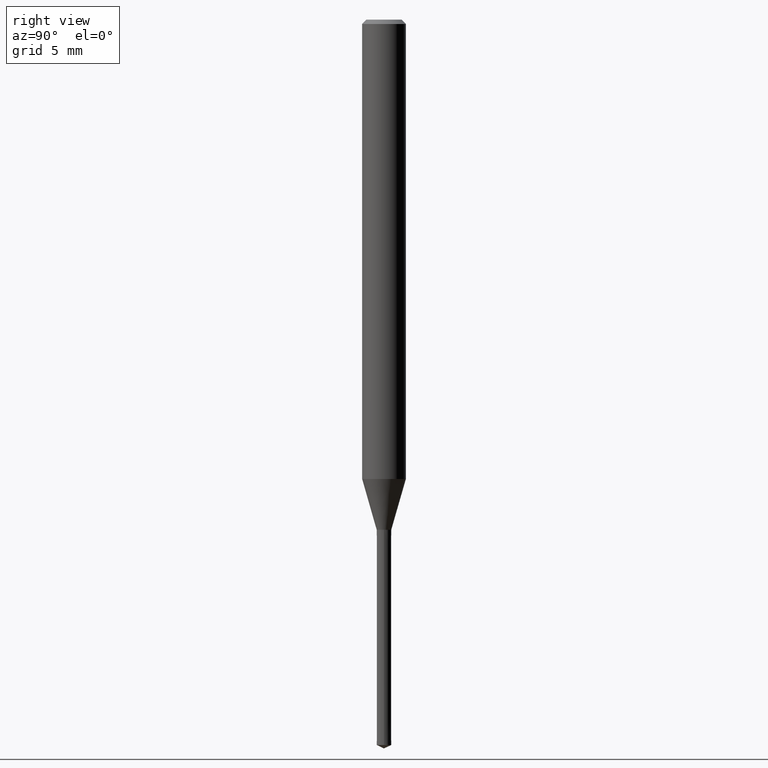
[diagram: clean part render]
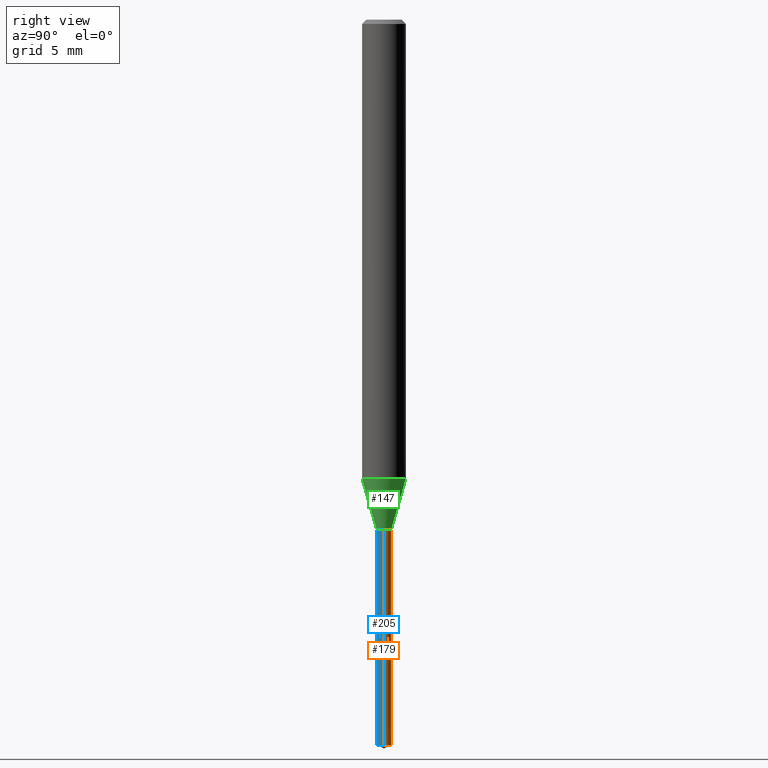
[diagram: same view with three faces highlighted in distinct colors, each labeled with its STEP entity id]
A machine part, right view with three faces highlighted in distinct colors.
Their STEP definitions:

[orange] entity #179 — the highlighted conical surface has half-angle 0.004 deg.
#105=VERTEX_POINT('',#242);
#109=VERTEX_POINT('',#246);
#155=VERTEX_POINT('',#300);
#157=EDGE_CURVE('',#105,#109,#302,.T.);
#159=EDGE_CURVE('',#155,#187,#304,.T.);
#177=EDGE_CURVE('',#187,#109,#323,.T.);
#179=ADVANCED_FACE('',(#325),#326,.T.);
#187=VERTEX_POINT('',#335);
#193=EDGE_CURVE('',#105,#155,#342,.T.);
#242=CARTESIAN_POINT('',(-0.501,0.0,-35.0));
#246=CARTESIAN_POINT('',(0.501,6.13527783265011E-017,-35.0));
#300=CARTESIAN_POINT('',(-0.5,0.0,-49.76684617));
#302=CIRCLE('',#463,0.501);
#304=CIRCLE('',#466,0.5);
#323=LINE('',#492,#493);
#325=FACE_OUTER_BOUND('',#495,.T.);
#326=CONICAL_SURFACE('',#496,0.5005,6.77192669957479E-005);
#335=CARTESIAN_POINT('',(0.5,6.12303176911189E-017,-49.76684617));
#342=LINE('',#515,#516);
#463=AXIS2_PLACEMENT_3D('',#638,#639,#640);
#466=AXIS2_PLACEMENT_3D('',#641,#642,#643);
#492=CARTESIAN_POINT('',(0.5005,6.129154800881E-017,-42.383423085));
#493=VECTOR('',#658,1.0);
#495=EDGE_LOOP('',(#660,#661,#662,#663));
#496=AXIS2_PLACEMENT_3D('',#664,#665,#666);
#515=CARTESIAN_POINT('',(-0.5005,-6.129154800881E-017,-42.383423085));
#516=VECTOR('',#687,1.0);
#638=CARTESIAN_POINT('',(0.0,0.0,-35.0));
#639=DIRECTION('',(0.0,0.0,-1.0));
#640=DIRECTION('',(-1.0,0.0,0.0));
#641=CARTESIAN_POINT('',(0.0,0.0,-49.76684617));
#642=DIRECTION('',(0.0,0.0,-1.0));
#643=DIRECTION('',(-1.0,0.0,0.0));
#658=DIRECTION('',(6.7719266943989E-005,8.29294445758026E-021,0.999999997707051));
#660=ORIENTED_EDGE('',*,*,#193,.F.);
#661=ORIENTED_EDGE('',*,*,#157,.T.);
#662=ORIENTED_EDGE('',*,*,#177,.F.);
#663=ORIENTED_EDGE('',*,*,#159,.F.);
#664=CARTESIAN_POINT('',(0.0,0.0,-42.383423085));
#665=DIRECTION('',(-0.0,-0.0,1.0));
#666=DIRECTION('',(-1.0,0.0,0.0));
#687=DIRECTION('',(6.7719266943989E-005,8.29294445758026E-021,-0.999999997707051));

[blue] entity #205 — the highlighted conical surface has half-angle 0.004 deg.
#105=VERTEX_POINT('',#242);
#109=VERTEX_POINT('',#246);
#133=EDGE_CURVE('',#109,#105,#275,.T.);
#155=VERTEX_POINT('',#300);
#177=EDGE_CURVE('',#187,#109,#323,.T.);
#187=VERTEX_POINT('',#335);
#193=EDGE_CURVE('',#105,#155,#342,.T.);
#199=EDGE_CURVE('',#187,#155,#348,.T.);
#205=ADVANCED_FACE('',(#354),#355,.T.);
#242=CARTESIAN_POINT('',(-0.501,0.0,-35.0));
#246=CARTESIAN_POINT('',(0.501,6.13527783265011E-017,-35.0));
#275=CIRCLE('',#428,0.501);
#300=CARTESIAN_POINT('',(-0.5,0.0,-49.76684617));
#323=LINE('',#492,#493);
#335=CARTESIAN_POINT('',(0.5,6.12303176911189E-017,-49.76684617));
#342=LINE('',#515,#516);
#348=CIRCLE('',#523,0.5);
#354=FACE_OUTER_BOUND('',#532,.T.);
#355=CONICAL_SURFACE('',#533,0.5005,6.77192669957479E-005);
#428=AXIS2_PLACEMENT_3D('',#602,#603,#604);
#492=CARTESIAN_POINT('',(0.5005,6.129154800881E-017,-42.383423085));
#493=VECTOR('',#658,1.0);
#515=CARTESIAN_POINT('',(-0.5005,-6.129154800881E-017,-42.383423085));
#516=VECTOR('',#687,1.0);
#523=AXIS2_PLACEMENT_3D('',#688,#689,#690);
#532=EDGE_LOOP('',(#696,#697,#698,#699));
#533=AXIS2_PLACEMENT_3D('',#700,#701,#702);
#602=CARTESIAN_POINT('',(0.0,0.0,-35.0));
#603=DIRECTION('',(0.0,0.0,-1.0));
#604=DIRECTION('',(-1.0,0.0,0.0));
#658=DIRECTION('',(6.7719266943989E-005,8.29294445758026E-021,0.999999997707051));
#687=DIRECTION('',(6.7719266943989E-005,8.29294445758026E-021,-0.999999997707051));
#688=CARTESIAN_POINT('',(0.0,0.0,-49.76684617));
#689=DIRECTION('',(0.0,0.0,-1.0));
#690=DIRECTION('',(-1.0,0.0,0.0));
#696=ORIENTED_EDGE('',*,*,#193,.T.);
#697=ORIENTED_EDGE('',*,*,#199,.F.);
#698=ORIENTED_EDGE('',*,*,#177,.T.);
#699=ORIENTED_EDGE('',*,*,#133,.T.);
#700=CARTESIAN_POINT('',(0.0,0.0,-42.383423085));
#701=DIRECTION('',(-0.0,-0.0,1.0));
#702=DIRECTION('',(-1.0,0.0,0.0));

[green] entity #147 — the highlighted conical surface has half-angle 16.006 deg.
#127=EDGE_CURVE('',#195,#165,#268,.T.);
#139=VERTEX_POINT('',#281);
#147=ADVANCED_FACE('',(#290),#291,.T.);
#149=EDGE_CURVE('',#171,#195,#293,.T.);
#163=EDGE_CURVE('',#139,#171,#308,.T.);
#165=VERTEX_POINT('',#310);
#171=VERTEX_POINT('',#316);
#185=EDGE_CURVE('',#139,#165,#333,.T.);
#195=VERTEX_POINT('',#344);
#268=LINE('',#418,#419);
#281=CARTESIAN_POINT('',(0.0,1.5,-31.513));
#290=FACE_OUTER_BOUND('',#447,.T.);
#291=CONICAL_SURFACE('',#448,1.0,0.279349998205856);
#293=CIRCLE('',#451,0.5);
#308=LINE('',#473,#474);
#310=CARTESIAN_POINT('',(1.83690953073357E-016,-1.5,-31.513));
#316=CARTESIAN_POINT('',(0.0,0.5,-34.9991339745962));
#333=CIRCLE('',#504,1.5);
#344=CARTESIAN_POINT('',(6.12303176911189E-017,-0.5,-34.9991339745962));
#418=CARTESIAN_POINT('',(1.22460635382238E-016,-1.0,-33.2560669872981));
#419=VECTOR('',#592,1.0);
#447=EDGE_LOOP('',(#621,#622,#623,#624));
#448=AXIS2_PLACEMENT_3D('',#625,#626,#627);
#451=AXIS2_PLACEMENT_3D('',#628,#629,#630);
#473=CARTESIAN_POINT('',(-1.22460635382238E-016,1.0,-33.2560669872981));
#474=VECTOR('',#645,1.0);
#504=AXIS2_PLACEMENT_3D('',#675,#676,#677);
#592=DIRECTION('',(3.37661815108076E-017,-0.275730902468478,0.961234866941435));
#621=ORIENTED_EDGE('',*,*,#163,.F.);
#622=ORIENTED_EDGE('',*,*,#185,.T.);
#623=ORIENTED_EDGE('',*,*,#127,.F.);
#624=ORIENTED_EDGE('',*,*,#149,.F.);
#625=CARTESIAN_POINT('',(0.0,0.0,-33.2560669872981));
#626=DIRECTION('',(-0.0,-0.0,1.0));
#627=DIRECTION('',(0.0,1.0,0.0));
#628=CARTESIAN_POINT('',(0.0,0.0,-34.9991339745962));
#629=DIRECTION('',(0.0,0.0,-1.0));
#630=DIRECTION('',(0.0,1.0,0.0));
#645=DIRECTION('',(3.37661815108076E-017,-0.275730902468478,-0.961234866941435));
#675=CARTESIAN_POINT('',(0.0,0.0,-31.513));
#676=DIRECTION('',(0.0,0.0,-1.0));
#677=DIRECTION('',(0.0,1.0,0.0));